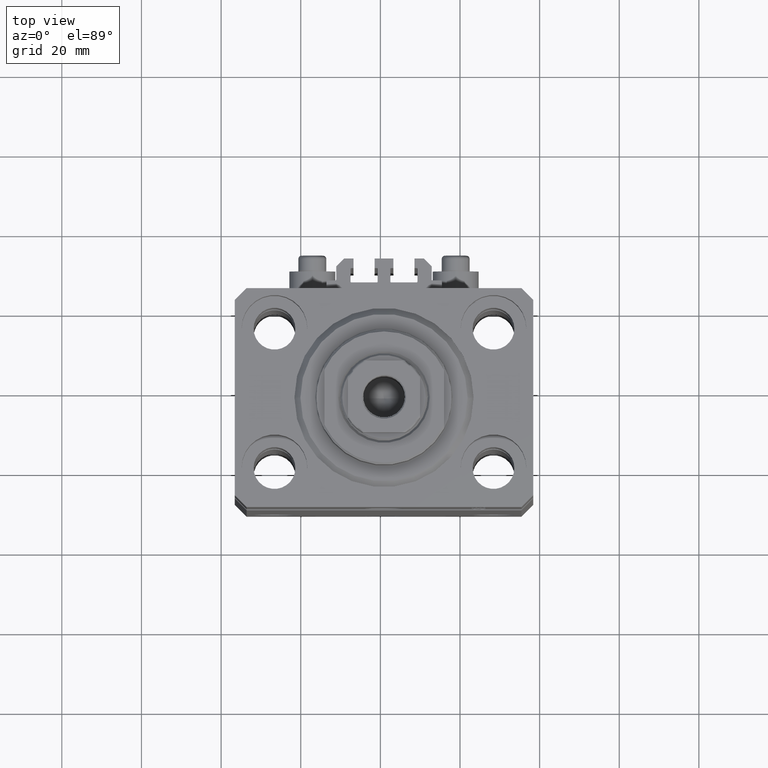
[diagram: clean part render]
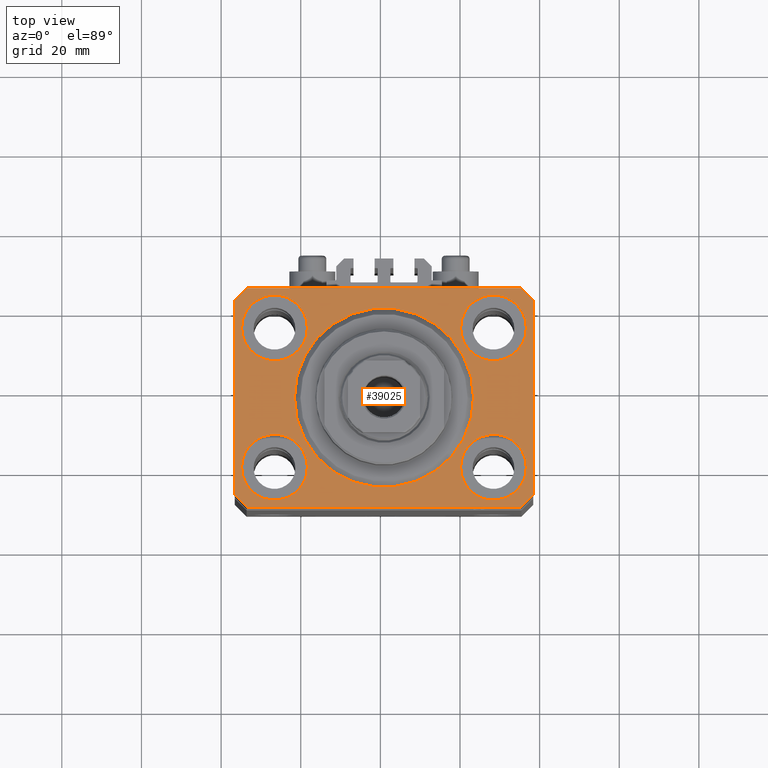
[diagram: same view with one face highlighted and labeled with its STEP entity id]
A machine part, top view. The second image highlights one B-rep face of the part: STEP entity #39025.
In plain terms, the highlighted planar face has unit normal (0, 0, 1).
Its self-contained STEP definition (entity closure, byte-faithful):
#632 = ORIENTED_EDGE ( 'NONE', *, *, #12974, .F. ) ;
#745 = CARTESIAN_POINT ( 'NONE',  ( 34.49999999999999289, -27.49999999999999645, 0.000000000000000000 ) ) ;
#1289 = VERTEX_POINT ( 'NONE', #16323 ) ;
#1312 = CARTESIAN_POINT ( 'NONE',  ( 35.75000000000000711, -17.50000000000000000, 0.000000000000000000 ) ) ;
#1331 = CIRCLE ( 'NONE', #40330, 8.250000000000000000 ) ;
#1906 = CARTESIAN_POINT ( 'NONE',  ( -27.50000000000000355, 17.50000000000000000, 0.000000000000000000 ) ) ;
#2324 = CARTESIAN_POINT ( 'NONE',  ( 37.49999999999999289, -24.50000000000000000, 0.000000000000000000 ) ) ;
#2360 = DIRECTION ( 'NONE',  ( 0.000000000000000000, 0.000000000000000000, 1.000000000000000000 ) ) ;
#2587 = LINE ( 'NONE', #17162, #21925 ) ;
#2673 = CIRCLE ( 'NONE', #25608, 22.50000000000000355 ) ;
#2779 = DIRECTION ( 'NONE',  ( 1.000000000000000000, 0.000000000000000000, 0.000000000000000000 ) ) ;
#3014 = LINE ( 'NONE', #35338, #30951 ) ;
#3462 = CARTESIAN_POINT ( 'NONE',  ( 27.49999999999999645, 17.50000000000001066, 0.000000000000000000 ) ) ;
#3522 = FACE_OUTER_BOUND ( 'NONE', #31130, .T. ) ;
#3895 = ORIENTED_EDGE ( 'NONE', *, *, #8922, .T. ) ;
#4000 = CARTESIAN_POINT ( 'NONE',  ( 19.25000000000000000, 17.50000000000001066, 0.000000000000000000 ) ) ;
#4226 = VERTEX_POINT ( 'NONE', #39547 ) ;
#4572 = VERTEX_POINT ( 'NONE', #43984 ) ;
#4815 = DIRECTION ( 'NONE',  ( 0.000000000000000000, 0.000000000000000000, 1.000000000000000000 ) ) ;
#4858 = VERTEX_POINT ( 'NONE', #22123 ) ;
#4989 = ORIENTED_EDGE ( 'NONE', *, *, #6418, .F. ) ;
#5087 = CIRCLE ( 'NONE', #11962, 22.50000000000000355 ) ;
#5329 = ORIENTED_EDGE ( 'NONE', *, *, #18763, .F. ) ;
#5540 = CARTESIAN_POINT ( 'NONE',  ( 37.49999999999999289, -24.50000000000000000, 0.000000000000000000 ) ) ;
#6418 = EDGE_CURVE ( 'NONE', #4572, #1289, #1331, .T. ) ;
#6626 = PLANE ( 'NONE',  #13254 ) ;
#6703 = CARTESIAN_POINT ( 'NONE',  ( 35.74999999999999289, 17.50000000000001066, 0.000000000000000000 ) ) ;
#6828 = EDGE_CURVE ( 'NONE', #4226, #9003, #30276, .T. ) ;
#7213 = EDGE_LOOP ( 'NONE', ( #5329, #25793 ) ) ;
#7341 = FACE_BOUND ( 'NONE', #15510, .T. ) ;
#7500 = DIRECTION ( 'NONE',  ( 1.000000000000000000, 0.000000000000000000, 0.000000000000000000 ) ) ;
#7568 = VECTOR ( 'NONE', #15358, 1000.000000000000114 ) ;
#7645 = EDGE_LOOP ( 'NONE', ( #10622, #12308 ) ) ;
#7663 = VERTEX_POINT ( 'NONE', #1312 ) ;
#8505 = EDGE_CURVE ( 'NONE', #15260, #14370, #28044, .T. ) ;
#8666 = ORIENTED_EDGE ( 'NONE', *, *, #41052, .T. ) ;
#8922 = EDGE_CURVE ( 'NONE', #14660, #20216, #2587, .T. ) ;
#9003 = VERTEX_POINT ( 'NONE', #14062 ) ;
#9165 = ORIENTED_EDGE ( 'NONE', *, *, #45838, .F. ) ;
#10016 = CIRCLE ( 'NONE', #22998, 8.250000000000000000 ) ;
#10223 = FACE_BOUND ( 'NONE', #29803, .T. ) ;
#10492 = DIRECTION ( 'NONE',  ( 0.000000000000000000, 0.000000000000000000, 1.000000000000000000 ) ) ;
#10622 = ORIENTED_EDGE ( 'NONE', *, *, #31684, .F. ) ;
#10880 = DIRECTION ( 'NONE',  ( 0.000000000000000000, 0.000000000000000000, 1.000000000000000000 ) ) ;
#11532 = EDGE_CURVE ( 'NONE', #14370, #15260, #25541, .T. ) ;
#11962 = AXIS2_PLACEMENT_3D ( 'NONE', #15571, #4815, #36910 ) ;
#12308 = ORIENTED_EDGE ( 'NONE', *, *, #32731, .F. ) ;
#12404 = CARTESIAN_POINT ( 'NONE',  ( -27.50000000000000355, -17.50000000000000000, 0.000000000000000000 ) ) ;
#12721 = EDGE_LOOP ( 'NONE', ( #9165, #34090 ) ) ;
#12849 = CARTESIAN_POINT ( 'NONE',  ( -27.50000000000000355, 17.50000000000000000, 0.000000000000000000 ) ) ;
#12974 = EDGE_CURVE ( 'NONE', #1289, #4572, #40903, .T. ) ;
#13075 = EDGE_CURVE ( 'NONE', #29712, #31895, #2673, .T. ) ;
#13117 = DIRECTION ( 'NONE',  ( 1.000000000000000000, 0.000000000000000000, 0.000000000000000000 ) ) ;
#13254 = AXIS2_PLACEMENT_3D ( 'NONE', #14744, #35844, #43516 ) ;
#14009 = CARTESIAN_POINT ( 'NONE',  ( -35.75000000000000711, 17.50000000000000000, 0.000000000000000000 ) ) ;
#14062 = CARTESIAN_POINT ( 'NONE',  ( -34.49999999999999289, 27.50000000000000000, 0.000000000000000000 ) ) ;
#14370 = VERTEX_POINT ( 'NONE', #4000 ) ;
#14499 = DIRECTION ( 'NONE',  ( 0.000000000000000000, 0.000000000000000000, 1.000000000000000000 ) ) ;
#14660 = VERTEX_POINT ( 'NONE', #28596 ) ;
#14744 = CARTESIAN_POINT ( 'NONE',  ( 0.000000000000000000, 0.000000000000000000, 0.000000000000000000 ) ) ;
#15048 = AXIS2_PLACEMENT_3D ( 'NONE', #42116, #39218, #16715 ) ;
#15103 = CARTESIAN_POINT ( 'NONE',  ( -34.49999999999999289, 27.50000000000000000, 0.000000000000000000 ) ) ;
#15111 = ORIENTED_EDGE ( 'NONE', *, *, #36783, .T. ) ;
#15260 = VERTEX_POINT ( 'NONE', #6703 ) ;
#15358 = DIRECTION ( 'NONE',  ( -0.7071067811865356934, 0.7071067811865594521, 0.000000000000000000 ) ) ;
#15510 = EDGE_LOOP ( 'NONE', ( #632, #4989 ) ) ;
#15571 = CARTESIAN_POINT ( 'NONE',  ( 0.000000000000000000, 0.000000000000000000, 0.000000000000000000 ) ) ;
#15585 = CARTESIAN_POINT ( 'NONE',  ( 37.50000000000051870, 24.49999999999995381, 0.000000000000000000 ) ) ;
#16323 = CARTESIAN_POINT ( 'NONE',  ( -19.25000000000000355, -17.50000000000000000, 0.000000000000000000 ) ) ;
#16715 = DIRECTION ( 'NONE',  ( 1.000000000000000000, 0.000000000000000000, 0.000000000000000000 ) ) ;
#16803 = VERTEX_POINT ( 'NONE', #14009 ) ;
#17162 = CARTESIAN_POINT ( 'NONE',  ( -37.49999999999999289, -24.50000000000000000, 0.000000000000000000 ) ) ;
#17430 = CARTESIAN_POINT ( 'NONE',  ( -22.50000000000000355, 2.755455298081545172E-15, 0.000000000000000000 ) ) ;
#17643 = CARTESIAN_POINT ( 'NONE',  ( 0.000000000000000000, 0.000000000000000000, 0.000000000000000000 ) ) ;
#18763 = EDGE_CURVE ( 'NONE', #7663, #4858, #45667, .T. ) ;
#19046 = CIRCLE ( 'NONE', #21350, 8.250000000000000000 ) ;
#19117 = VERTEX_POINT ( 'NONE', #5540 ) ;
#19390 = LINE ( 'NONE', #15103, #46960 ) ;
#20216 = VERTEX_POINT ( 'NONE', #37034 ) ;
#20557 = DIRECTION ( 'NONE',  ( 1.000000000000000000, 0.000000000000000000, 0.000000000000000000 ) ) ;
#20600 = DIRECTION ( 'NONE',  ( 0.7071067811865474617, 0.7071067811865474617, 0.000000000000000000 ) ) ;
#20722 = DIRECTION ( 'NONE',  ( 0.000000000000000000, 0.000000000000000000, 1.000000000000000000 ) ) ;
#21219 = FACE_BOUND ( 'NONE', #7645, .T. ) ;
#21350 = AXIS2_PLACEMENT_3D ( 'NONE', #28630, #14499, #2779 ) ;
#21377 = DIRECTION ( 'NONE',  ( 0.000000000000000000, 0.000000000000000000, 1.000000000000000000 ) ) ;
#21925 = VECTOR ( 'NONE', #31791, 1000.000000000000000 ) ;
#21963 = CARTESIAN_POINT ( 'NONE',  ( -27.50000000000000355, -17.50000000000000000, 0.000000000000000000 ) ) ;
#22123 = CARTESIAN_POINT ( 'NONE',  ( 19.25000000000000000, -17.50000000000000000, 0.000000000000000000 ) ) ;
#22214 = CARTESIAN_POINT ( 'NONE',  ( -34.49999999999998579, -27.49999999999999645, 0.000000000000000000 ) ) ;
#22998 = AXIS2_PLACEMENT_3D ( 'NONE', #12849, #20722, #35349 ) ;
#23034 = VECTOR ( 'NONE', #42781, 1000.000000000000000 ) ;
#23240 = AXIS2_PLACEMENT_3D ( 'NONE', #3462, #10880, #25475 ) ;
#23482 = AXIS2_PLACEMENT_3D ( 'NONE', #32647, #21377, #7500 ) ;
#23811 = CARTESIAN_POINT ( 'NONE',  ( 37.50000000000051870, 24.49999999999995381, 0.000000000000000000 ) ) ;
#23812 = CIRCLE ( 'NONE', #46008, 8.250000000000000000 ) ;
#24095 = CARTESIAN_POINT ( 'NONE',  ( -37.49999999999999289, 24.50000000000000000, 0.000000000000000000 ) ) ;
#25049 = VECTOR ( 'NONE', #37684, 1000.000000000000000 ) ;
#25475 = DIRECTION ( 'NONE',  ( 1.000000000000000000, 0.000000000000000000, 0.000000000000000000 ) ) ;
#25541 = CIRCLE ( 'NONE', #23240, 8.249999999999992895 ) ;
#25608 = AXIS2_PLACEMENT_3D ( 'NONE', #17643, #10492, #36978 ) ;
#25793 = ORIENTED_EDGE ( 'NONE', *, *, #27781, .F. ) ;
#25821 = DIRECTION ( 'NONE',  ( 1.000000000000000000, 0.000000000000000000, 0.000000000000000000 ) ) ;
#26065 = EDGE_CURVE ( 'NONE', #40475, #4226, #45281, .T. ) ;
#26266 = DIRECTION ( 'NONE',  ( 0.000000000000000000, 0.000000000000000000, 1.000000000000000000 ) ) ;
#27331 = CARTESIAN_POINT ( 'NONE',  ( 34.49999999999999289, -27.49999999999999645, 0.000000000000000000 ) ) ;
#27483 = ORIENTED_EDGE ( 'NONE', *, *, #8505, .F. ) ;
#27781 = EDGE_CURVE ( 'NONE', #4858, #7663, #19046, .T. ) ;
#28044 = CIRCLE ( 'NONE', #15048, 8.249999999999992895 ) ;
#28596 = CARTESIAN_POINT ( 'NONE',  ( -37.49999999999999289, -24.50000000000000000, 0.000000000000000000 ) ) ;
#28630 = CARTESIAN_POINT ( 'NONE',  ( 27.50000000000000355, -17.50000000000000000, 0.000000000000000000 ) ) ;
#28902 = FACE_BOUND ( 'NONE', #12721, .T. ) ;
#29322 = VERTEX_POINT ( 'NONE', #745 ) ;
#29712 = VERTEX_POINT ( 'NONE', #17430 ) ;
#29803 = EDGE_LOOP ( 'NONE', ( #27483, #29975 ) ) ;
#29887 = LINE ( 'NONE', #22214, #46124 ) ;
#29954 = VERTEX_POINT ( 'NONE', #24095 ) ;
#29975 = ORIENTED_EDGE ( 'NONE', *, *, #11532, .F. ) ;
#30276 = LINE ( 'NONE', #41300, #25049 ) ;
#30951 = VECTOR ( 'NONE', #43237, 1000.000000000000000 ) ;
#31130 = EDGE_LOOP ( 'NONE', ( #39405, #8666, #37374, #3895, #15111, #37916, #38640, #40532 ) ) ;
#31684 = EDGE_CURVE ( 'NONE', #35713, #16803, #10016, .T. ) ;
#31791 = DIRECTION ( 'NONE',  ( 0.7071067811865483499, -0.7071067811865466846, 0.000000000000000000 ) ) ;
#31895 = VERTEX_POINT ( 'NONE', #44905 ) ;
#32647 = CARTESIAN_POINT ( 'NONE',  ( 27.50000000000000355, -17.50000000000000000, 0.000000000000000000 ) ) ;
#32731 = EDGE_CURVE ( 'NONE', #16803, #35713, #23812, .T. ) ;
#33220 = DIRECTION ( 'NONE',  ( 1.000000000000000000, 0.000000000000000000, 0.000000000000000000 ) ) ;
#34090 = ORIENTED_EDGE ( 'NONE', *, *, #13075, .F. ) ;
#34987 = LINE ( 'NONE', #27331, #36928 ) ;
#35298 = EDGE_CURVE ( 'NONE', #19117, #40475, #46604, .T. ) ;
#35338 = CARTESIAN_POINT ( 'NONE',  ( -37.49999999999999289, 24.50000000000000000, 0.000000000000000000 ) ) ;
#35349 = DIRECTION ( 'NONE',  ( 1.000000000000000000, 0.000000000000000000, 0.000000000000000000 ) ) ;
#35551 = AXIS2_PLACEMENT_3D ( 'NONE', #12404, #2360, #13117 ) ;
#35713 = VERTEX_POINT ( 'NONE', #45725 ) ;
#35844 = DIRECTION ( 'NONE',  ( 0.000000000000000000, 0.000000000000000000, 1.000000000000000000 ) ) ;
#36316 = FACE_BOUND ( 'NONE', #7213, .T. ) ;
#36493 = EDGE_CURVE ( 'NONE', #29322, #19117, #34987, .T. ) ;
#36783 = EDGE_CURVE ( 'NONE', #20216, #29322, #29887, .T. ) ;
#36910 = DIRECTION ( 'NONE',  ( 1.000000000000000000, 0.000000000000000000, 0.000000000000000000 ) ) ;
#36928 = VECTOR ( 'NONE', #20600, 1000.000000000000114 ) ;
#36978 = DIRECTION ( 'NONE',  ( 1.000000000000000000, 0.000000000000000000, 0.000000000000000000 ) ) ;
#37034 = CARTESIAN_POINT ( 'NONE',  ( -34.49999999999998579, -27.49999999999999645, 0.000000000000000000 ) ) ;
#37374 = ORIENTED_EDGE ( 'NONE', *, *, #42419, .T. ) ;
#37684 = DIRECTION ( 'NONE',  ( -1.000000000000000000, 0.000000000000000000, 0.000000000000000000 ) ) ;
#37916 = ORIENTED_EDGE ( 'NONE', *, *, #36493, .T. ) ;
#38640 = ORIENTED_EDGE ( 'NONE', *, *, #35298, .T. ) ;
#39025 = ADVANCED_FACE ( 'NONE', ( #7341, #36316, #10223, #21219, #28902, #3522 ), #6626, .T. ) ;
#39218 = DIRECTION ( 'NONE',  ( 0.000000000000000000, 0.000000000000000000, 1.000000000000000000 ) ) ;
#39405 = ORIENTED_EDGE ( 'NONE', *, *, #6828, .T. ) ;
#39547 = CARTESIAN_POINT ( 'NONE',  ( 34.50000000000056843, 27.50000000000000000, 0.000000000000000000 ) ) ;
#40330 = AXIS2_PLACEMENT_3D ( 'NONE', #21963, #26266, #33220 ) ;
#40475 = VERTEX_POINT ( 'NONE', #23811 ) ;
#40532 = ORIENTED_EDGE ( 'NONE', *, *, #26065, .T. ) ;
#40903 = CIRCLE ( 'NONE', #35551, 8.250000000000000000 ) ;
#41052 = EDGE_CURVE ( 'NONE', #9003, #29954, #19390, .T. ) ;
#41300 = CARTESIAN_POINT ( 'NONE',  ( 34.50000000000056843, 27.50000000000000000, 0.000000000000000000 ) ) ;
#42116 = CARTESIAN_POINT ( 'NONE',  ( 27.49999999999999645, 17.50000000000001066, 0.000000000000000000 ) ) ;
#42419 = EDGE_CURVE ( 'NONE', #29954, #14660, #3014, .T. ) ;
#42781 = DIRECTION ( 'NONE',  ( 1.076236605503979380E-14, 1.000000000000000000, 0.000000000000000000 ) ) ;
#43237 = DIRECTION ( 'NONE',  ( 0.000000000000000000, -1.000000000000000000, 0.000000000000000000 ) ) ;
#43516 = DIRECTION ( 'NONE',  ( 1.000000000000000000, 0.000000000000000000, -0.000000000000000000 ) ) ;
#43984 = CARTESIAN_POINT ( 'NONE',  ( -35.75000000000000711, -17.50000000000000000, 0.000000000000000000 ) ) ;
#44329 = DIRECTION ( 'NONE',  ( -0.7071067811865471286, -0.7071067811865479058, 0.000000000000000000 ) ) ;
#44905 = CARTESIAN_POINT ( 'NONE',  ( 22.50000000000000355, 0.000000000000000000, 0.000000000000000000 ) ) ;
#45249 = DIRECTION ( 'NONE',  ( 0.000000000000000000, 0.000000000000000000, 1.000000000000000000 ) ) ;
#45281 = LINE ( 'NONE', #15585, #7568 ) ;
#45667 = CIRCLE ( 'NONE', #23482, 8.250000000000000000 ) ;
#45725 = CARTESIAN_POINT ( 'NONE',  ( -19.25000000000000355, 17.50000000000000000, 0.000000000000000000 ) ) ;
#45838 = EDGE_CURVE ( 'NONE', #31895, #29712, #5087, .T. ) ;
#46008 = AXIS2_PLACEMENT_3D ( 'NONE', #1906, #45249, #20557 ) ;
#46124 = VECTOR ( 'NONE', #25821, 1000.000000000000000 ) ;
#46604 = LINE ( 'NONE', #2324, #23034 ) ;
#46960 = VECTOR ( 'NONE', #44329, 1000.000000000000000 ) ;